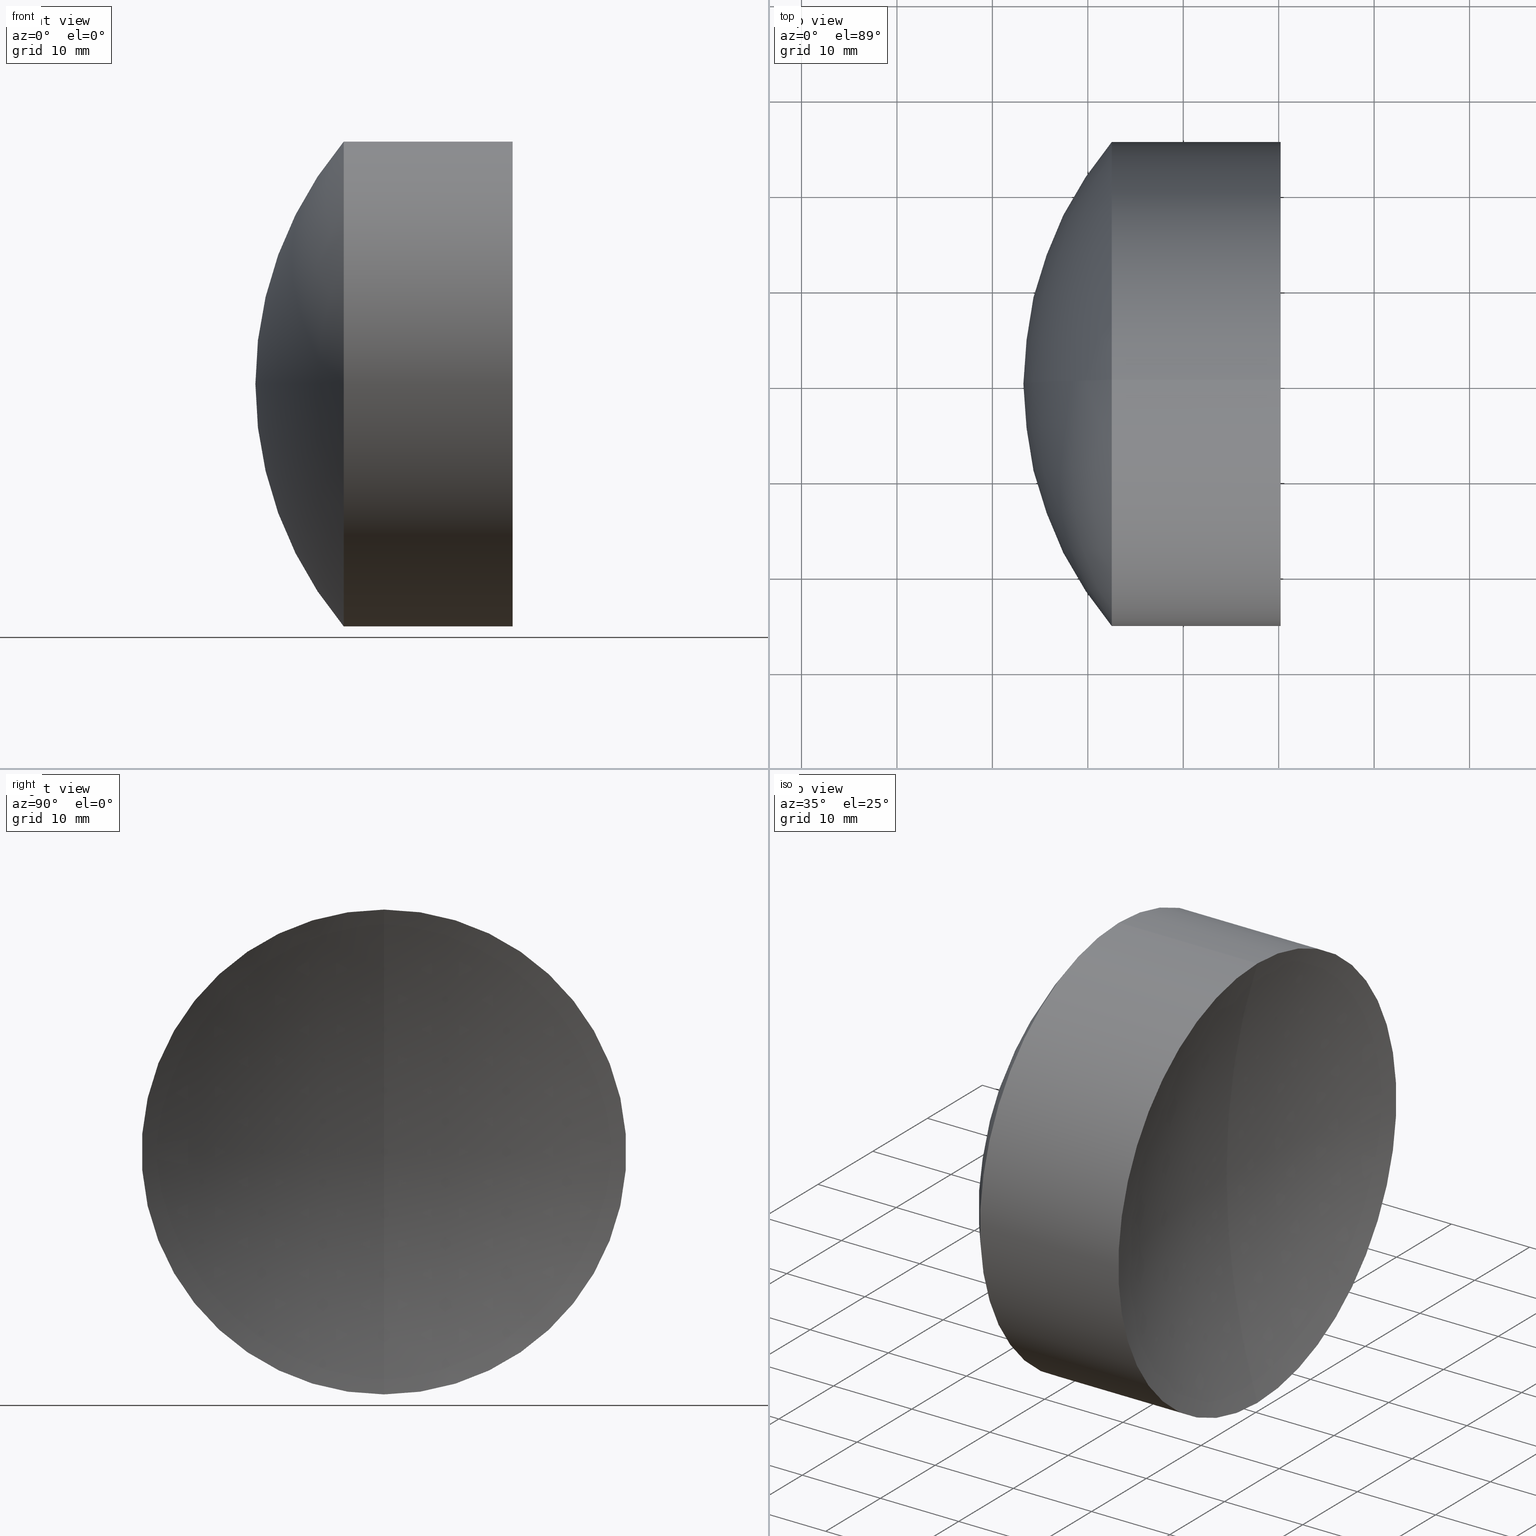
[diagram: canonical four-view strip — front | top / right | iso, engineering-drawing reading convention]
A machine part, canonical four-view strip (front | top / right | iso — engineering-drawing reading convention). The complete STEP part file that produces these views, byte-faithful:
ISO-10303-21;
HEADER;
FILE_DESCRIPTION (( 'STEP AP214' ),
    '1' );
FILE_NAME ('145179.STEP',
    '2019-06-13T01:35:48',
    ( 'user' ),
    ( '΢���й�' ),
    'SwSTEP 2.0',
    'SolidWorks 2016',
    '' );
FILE_SCHEMA (( 'AUTOMOTIVE_DESIGN' ));
ENDSEC;

DATA;
#1 = CARTESIAN_POINT ( 'NONE',  ( 199.8494437825909000, 0.0000000000000000000, 0.0000000000000000000 ) ) ;
#2 = DIRECTION ( 'NONE',  ( -0.0000000000000000000, 1.000000000000000000, 1.224646799147353200E-016 ) ) ;
#3 = DIRECTION ( 'NONE',  ( 0.0000000000000000000, 1.224646799147353200E-016, -1.000000000000000000 ) ) ;
#4 = ORIENTED_EDGE ( 'NONE', *, *, #196, .T. ) ;
#5 = DIRECTION ( 'NONE',  ( 0.0000000000000000000, 0.0000000000000000000, 1.000000000000000000 ) ) ;
#6 = ORIENTED_EDGE ( 'NONE', *, *, #211, .F. ) ;
#7 = AXIS2_PLACEMENT_3D ( 'NONE', #138, #291, #108 ) ;
#8 = DIRECTION ( 'NONE',  ( 0.0000000000000000000, 0.0000000000000000000, -1.000000000000000000 ) ) ;
#9 = FACE_OUTER_BOUND ( 'NONE', #109, .T. ) ;
#10 = DIRECTION ( 'NONE',  ( 0.0000000000000000000, 0.0000000000000000000, -1.000000000000000000 ) ) ;
#11 = FACE_OUTER_BOUND ( 'NONE', #34, .T. ) ;
#12 = CARTESIAN_POINT ( 'NONE',  ( 0.0000000000000000000, 0.0000000000000000000, 0.0000000000000000000 ) ) ;
#13 = MECHANICAL_DESIGN_GEOMETRIC_PRESENTATION_REPRESENTATION (  '', ( #324 ), #39 ) ;
#14 = ORIENTED_EDGE ( 'NONE', *, *, #249, .F. ) ;
#15 = SURFACE_STYLE_USAGE ( .BOTH. , #130 ) ;
#16 = ORIENTED_EDGE ( 'NONE', *, *, #50, .T. ) ;
#17 = ORIENTED_EDGE ( 'NONE', *, *, #71, .F. ) ;
#18 = DIRECTION ( 'NONE',  ( 0.0000000000000000000, 0.0000000000000000000, 1.000000000000000000 ) ) ;
#19 = MANIFOLD_SOLID_BREP ( '��ת1', #309 ) ;
#20 = SPHERICAL_SURFACE ( 'NONE', #244, 49.88999999999998600 ) ;
#21 = SURFACE_STYLE_USAGE ( .BOTH. , #51 ) ;
#22 = SPHERICAL_SURFACE ( 'NONE', #259, 49.88999999999998600 ) ;
#23 = EDGE_CURVE ( 'NONE', #100, #292, #134, .T. ) ;
#24 = ORIENTED_EDGE ( 'NONE', *, *, #196, .F. ) ;
#25 = EDGE_CURVE ( 'NONE', #283, #174, #331, .T. ) ;
#26 = CARTESIAN_POINT ( 'NONE',  ( 61.35944378259088700, 0.0000000000000000000, 1.934033328962417500E-014 ) ) ;
#27 = PRODUCT ( '145179', '145179', '', ( #69 ) ) ;
#28 = DIRECTION ( 'NONE',  ( 0.0000000000000000000, 0.0000000000000000000, 1.000000000000000000 ) ) ;
#29 = CARTESIAN_POINT ( 'NONE',  ( 104.2995427577912200, 3.110602869834277700E-015, -25.40000000000000600 ) ) ;
#30 = ORIENTED_EDGE ( 'NONE', *, *, #187, .T. ) ;
#31 = DIRECTION ( 'NONE',  ( -1.000000000000000000, -0.0000000000000000000, -0.0000000000000000000 ) ) ;
#32 = COLOUR_RGB ( '',1.000000000000000000, 1.000000000000000000, 1.000000000000000000 ) ;
#33 =( NAMED_UNIT ( * ) SI_UNIT ( $, .STERADIAN. ) SOLID_ANGLE_UNIT ( ) );
#34 = EDGE_LOOP ( 'NONE', ( #301, #207, #186, #14 ) ) ;
#35 = CARTESIAN_POINT ( 'NONE',  ( 61.35944378259088700, 0.0000000000000000000, 1.934033328962417500E-014 ) ) ;
#36 = DIRECTION ( 'NONE',  ( 0.0000000000000000000, 1.000000000000000000, 0.0000000000000000000 ) ) ;
#37 = ADVANCED_FACE ( 'NONE', ( #208 ), #123, .T. ) ;
#38 = ORIENTED_EDGE ( 'NONE', *, *, #247, .T. ) ;
#39 =( GEOMETRIC_REPRESENTATION_CONTEXT ( 3 ) GLOBAL_UNCERTAINTY_ASSIGNED_CONTEXT ( ( #276 ) ) GLOBAL_UNIT_ASSIGNED_CONTEXT ( ( #332, #237, #212 ) ) REPRESENTATION_CONTEXT ( 'NONE', 'WORKASPACE' ) );
#40 = CARTESIAN_POINT ( 'NONE',  ( 93.24944378259087300, 0.0000000000000000000, -1.964037554729124800E-016 ) ) ;
#41 = ORIENTED_EDGE ( 'NONE', *, *, #159, .T. ) ;
#42 = CARTESIAN_POINT ( 'NONE',  ( 104.2995427577912200, 0.0000000000000000000, -25.39999999999995600 ) ) ;
#43 = CARTESIAN_POINT ( 'NONE',  ( 104.2995427577912200, 0.0000000000000000000, 0.0000000000000000000 ) ) ;
#44 = DIRECTION ( 'NONE',  ( -1.000000000000000000, -0.0000000000000000000, -0.0000000000000000000 ) ) ;
#45 = VERTEX_POINT ( 'NONE', #339 ) ;
#46 = AXIS2_PLACEMENT_3D ( 'NONE', #340, #295, #111 ) ;
#47 = ORIENTED_EDGE ( 'NONE', *, *, #247, .F. ) ;
#48 = DIRECTION ( 'NONE',  ( 0.0000000000000000000, 0.0000000000000000000, 1.000000000000000000 ) ) ;
#49 = ORIENTED_EDGE ( 'NONE', *, *, #213, .F. ) ;
#50 = EDGE_CURVE ( 'NONE', #204, #45, #258, .T. ) ;
#51 = SURFACE_SIDE_STYLE ('',( #319 ) ) ;
#52 = FACE_OUTER_BOUND ( 'NONE', #99, .T. ) ;
#53 = LINE ( 'NONE', #246, #265 ) ;
#54 = DIRECTION ( 'NONE',  ( -1.000000000000000000, -0.0000000000000000000, -0.0000000000000000000 ) ) ;
#55 = FACE_OUTER_BOUND ( 'NONE', #80, .T. ) ;
#56 = DIRECTION ( 'NONE',  ( 0.0000000000000000000, 0.0000000000000000000, 1.000000000000000000 ) ) ;
#57 = ORIENTED_EDGE ( 'NONE', *, *, #187, .F. ) ;
#58 = SURFACE_SIDE_STYLE ('',( #261 ) ) ;
#59 = DIRECTION ( 'NONE',  ( 0.0000000000000000000, -1.224646799147353200E-016, 1.000000000000000000 ) ) ;
#60 = ORIENTED_EDGE ( 'NONE', *, *, #211, .T. ) ;
#61 = AXIS2_PLACEMENT_3D ( 'NONE', #122, #96, #89 ) ;
#62 = ADVANCED_FACE ( 'NONE', ( #115 ), #323, .F. ) ;
#63 = CARTESIAN_POINT ( 'NONE',  ( 132.7294437825908900, 0.0000000000000000000, -2.613856536989788900E-015 ) ) ;
#64 = CARTESIAN_POINT ( 'NONE',  ( 199.8494437825909000, 0.0000000000000000000, 0.0000000000000000000 ) ) ;
#65 = CARTESIAN_POINT ( 'NONE',  ( 199.8494437825909000, 0.0000000000000000000, 0.0000000000000000000 ) ) ;
#66 = CARTESIAN_POINT ( 'NONE',  ( 116.2494437825908600, 0.0000000000000000000, -5.119023620435939000E-015 ) ) ;
#67 = ORIENTED_EDGE ( 'NONE', *, *, #281, .T. ) ;
#68 = CIRCLE ( 'NONE', #131, 25.39999999999995600 ) ;
#69 = PRODUCT_CONTEXT ( 'NONE', #157, 'mechanical' ) ;
#70 = CARTESIAN_POINT ( 'NONE',  ( 102.5051092158878300, 0.0000000000000000000, 25.40000000000000600 ) ) ;
#71 = EDGE_CURVE ( 'NONE', #82, #342, #53, .T. ) ;
#72 = FILL_AREA_STYLE ('',( #125 ) ) ;
#73 = CARTESIAN_POINT ( 'NONE',  ( -0.8160621761658039000, 0.0000000000000000000, 0.0000000000000000000 ) ) ;
#74 = ORIENTED_EDGE ( 'NONE', *, *, #25, .F. ) ;
#75 = CIRCLE ( 'NONE', #165, 25.39999999999995600 ) ;
#76 = AXIS2_PLACEMENT_3D ( 'NONE', #202, #325, #273 ) ;
#77 = EDGE_CURVE ( 'NONE', #82, #100, #191, .T. ) ;
#78 = CARTESIAN_POINT ( 'NONE',  ( 111.2494437825908900, 0.0000000000000000000, 2.239521473009724700E-014 ) ) ;
#79 = EDGE_CURVE ( 'NONE', #45, #243, #198, .T. ) ;
#80 = EDGE_LOOP ( 'NONE', ( #236, #60, #49 ) ) ;
#81 = DIRECTION ( 'NONE',  ( 0.0000000000000000000, 0.0000000000000000000, -1.000000000000000000 ) ) ;
#82 = VERTEX_POINT ( 'NONE', #29 ) ;
#83 = CARTESIAN_POINT ( 'NONE',  ( 120.2014682904290900, 0.0000000000000000000, 0.0000000000000000000 ) ) ;
#84 = ADVANCED_BREP_SHAPE_REPRESENTATION ( '145179', ( #19, #269, #91 ), #242 ) ;
#85 = SURFACE_STYLE_USAGE ( .BOTH. , #58 ) ;
#86 = CIRCLE ( 'NONE', #239, 25.40000000000000600 ) ;
#87 = SHAPE_DEFINITION_REPRESENTATION ( #235, #84 ) ;
#88 = ADVANCED_FACE ( 'NONE', ( #343 ), #143, .T. ) ;
#89 = DIRECTION ( 'NONE',  ( 0.0000000000000000000, 0.0000000000000000000, -1.000000000000000000 ) ) ;
#90 = ORIENTED_EDGE ( 'NONE', *, *, #126, .F. ) ;
#91 = AXIS2_PLACEMENT_3D ( 'NONE', #12, #260, #156 ) ;
#92 = ORIENTED_EDGE ( 'NONE', *, *, #23, .T. ) ;
#93 = CARTESIAN_POINT ( 'NONE',  ( -0.5519199926577972300, 0.0000000000000000000, 0.0000000000000000000 ) ) ;
#94 = ORIENTED_EDGE ( 'NONE', *, *, #146, .F. ) ;
#95 = CIRCLE ( 'NONE', #284, 39.48000000000001800 ) ;
#96 = DIRECTION ( 'NONE',  ( 0.0000000000000000000, -1.000000000000000000, 0.0000000000000000000 ) ) ;
#97 = SPHERICAL_SURFACE ( 'NONE', #226, 83.60000000000003700 ) ;
#98 = AXIS2_PLACEMENT_3D ( 'NONE', #144, #225, #48 ) ;
#99 = EDGE_LOOP ( 'NONE', ( #24, #114, #253 ) ) ;
#100 = VERTEX_POINT ( 'NONE', #317 ) ;
#101 = DIRECTION ( 'NONE',  ( -1.000000000000000000, -0.0000000000000000000, -0.0000000000000000000 ) ) ;
#102 = DIRECTION ( 'NONE',  ( 0.0000000000000000000, 0.0000000000000000000, -1.000000000000000000 ) ) ;
#103 = ORIENTED_EDGE ( 'NONE', *, *, #146, .T. ) ;
#104 = APPLICATION_PROTOCOL_DEFINITION ( 'draft international standard', 'automotive_design', 1998, #124 ) ;
#105 = ORIENTED_EDGE ( 'NONE', *, *, #77, .T. ) ;
#106 = DIRECTION ( 'NONE',  ( 0.0000000000000000000, 0.0000000000000000000, 1.000000000000000000 ) ) ;
#107 = PRODUCT_DEFINITION ( 'δ֪', '', #127, #218 ) ;
#108 = DIRECTION ( 'NONE',  ( 0.0000000000000000000, 0.0000000000000000000, 1.000000000000000000 ) ) ;
#109 = EDGE_LOOP ( 'NONE', ( #251, #220, #41 ) ) ;
#110 = DIRECTION ( 'NONE',  ( 0.0000000000000000000, -1.000000000000000000, -1.224646799147353200E-016 ) ) ;
#111 = DIRECTION ( 'NONE',  ( 0.0000000000000000000, 0.0000000000000000000, 1.000000000000000000 ) ) ;
#112 = ADVANCED_FACE ( 'NONE', ( #217 ), #277, .T. ) ;
#113 = AXIS2_PLACEMENT_3D ( 'NONE', #197, #36, #206 ) ;
#114 = ORIENTED_EDGE ( 'NONE', *, *, #169, .F. ) ;
#115 = FACE_OUTER_BOUND ( 'NONE', #228, .T. ) ;
#116 = VERTEX_POINT ( 'NONE', #78 ) ;
#117 = CARTESIAN_POINT ( 'NONE',  ( 132.7294437825908900, 0.0000000000000000000, -2.613856536989788900E-015 ) ) ;
#118 = AXIS2_PLACEMENT_3D ( 'NONE', #63, #252, #10 ) ;
#119 = DIRECTION ( 'NONE',  ( 0.0000000000000000000, 1.000000000000000000, -0.0000000000000000000 ) ) ;
#120 = CIRCLE ( 'NONE', #98, 25.40000000000000600 ) ;
#121 = AXIS2_PLACEMENT_3D ( 'NONE', #140, #318, #81 ) ;
#122 = CARTESIAN_POINT ( 'NONE',  ( 61.35944378259088700, 0.0000000000000000000, 1.934033328962417500E-014 ) ) ;
#123 = CYLINDRICAL_SURFACE ( 'NONE', #46, 25.40000000000000600 ) ;
#124 = APPLICATION_CONTEXT ( 'automotive_design' ) ;
#125 = FILL_AREA_STYLE_COLOUR ( '', #32 ) ;
#126 = EDGE_CURVE ( 'NONE', #174, #243, #286, .T. ) ;
#127 = PRODUCT_DEFINITION_FORMATION_WITH_SPECIFIED_SOURCE ( '�κ�', '', #27, .NOT_KNOWN. ) ;
#128 = PRESENTATION_STYLE_ASSIGNMENT (( #85 ) ) ;
#129 = PRESENTATION_STYLE_ASSIGNMENT (( #15 ) ) ;
#130 = SURFACE_SIDE_STYLE ('',( #201 ) ) ;
#131 = AXIS2_PLACEMENT_3D ( 'NONE', #205, #44, #180 ) ;
#132 = DIRECTION ( 'NONE',  ( 0.0000000000000000000, 1.000000000000000000, 0.0000000000000000000 ) ) ;
#133 = DIRECTION ( 'NONE',  ( -0.0000000000000000000, -1.000000000000000000, -0.0000000000000000000 ) ) ;
#134 = LINE ( 'NONE', #221, #271 ) ;
#135 = STYLED_ITEM ( 'NONE', ( #256 ), #269 ) ;
#136 = AXIS2_PLACEMENT_3D ( 'NONE', #275, #119, #254 ) ;
#137 = DIRECTION ( 'NONE',  ( -1.000000000000000000, -0.0000000000000000000, -0.0000000000000000000 ) ) ;
#138 = CARTESIAN_POINT ( 'NONE',  ( 104.2995427577912200, 0.0000000000000000000, 0.0000000000000000000 ) ) ;
#139 = AXIS2_PLACEMENT_3D ( 'NONE', #293, #110, #268 ) ;
#140 = CARTESIAN_POINT ( 'NONE',  ( 199.8494437825909000, 0.0000000000000000000, 0.0000000000000000000 ) ) ;
#141 = AXIS2_PLACEMENT_3D ( 'NONE', #65, #255, #328 ) ;
#142 =( LENGTH_UNIT ( ) NAMED_UNIT ( * ) SI_UNIT ( .MILLI., .METRE. ) );
#143 = SPHERICAL_SURFACE ( 'NONE', #330, 39.48000000000001800 ) ;
#144 = CARTESIAN_POINT ( 'NONE',  ( 102.5051092158878300, 0.0000000000000000000, 0.0000000000000000000 ) ) ;
#145 = CARTESIAN_POINT ( 'NONE',  ( 120.2014682904290900, 0.0000000000000000000, -25.39999999999995600 ) ) ;
#146 = EDGE_CURVE ( 'NONE', #116, #82, #153, .T. ) ;
#147 = SPHERICAL_SURFACE ( 'NONE', #76, 49.88999999999998600 ) ;
#148 = PRODUCT_RELATED_PRODUCT_CATEGORY ( 'part', '', ( #27 ) ) ;
#149 = CARTESIAN_POINT ( 'NONE',  ( 111.2494437825908900, 0.0000000000000000000, 1.628545184915110600E-014 ) ) ;
#150 = ORIENTED_EDGE ( 'NONE', *, *, #213, .T. ) ;
#151 = DIRECTION ( 'NONE',  ( -1.000000000000000000, -0.0000000000000000000, -0.0000000000000000000 ) ) ;
#152 = UNCERTAINTY_MEASURE_WITH_UNIT (LENGTH_MEASURE( 1.000000000000000100E-005 ), #190, 'distance_accuracy_value', 'NONE');
#153 = CIRCLE ( 'NONE', #344, 49.88999999999998600 ) ;
#154 = CYLINDRICAL_SURFACE ( 'NONE', #289, 25.39999999999995600 ) ;
#155 = PRESENTATION_LAYER_ASSIGNMENT (  '', '', ( #135 ) ) ;
#156 = DIRECTION ( 'NONE',  ( 1.000000000000000000, 0.0000000000000000000, 0.0000000000000000000 ) ) ;
#157 = APPLICATION_CONTEXT ( 'automotive_design' ) ;
#158 = ORIENTED_EDGE ( 'NONE', *, *, #249, .T. ) ;
#159 = EDGE_CURVE ( 'NONE', #243, #45, #75, .T. ) ;
#160 = ORIENTED_EDGE ( 'NONE', *, *, #177, .F. ) ;
#161 = DIRECTION ( 'NONE',  ( 0.0000000000000000000, 0.0000000000000000000, 1.000000000000000000 ) ) ;
#162 = SPHERICAL_SURFACE ( 'NONE', #113, 39.48000000000001800 ) ;
#163 =( NAMED_UNIT ( * ) SI_UNIT ( $, .STERADIAN. ) SOLID_ANGLE_UNIT ( ) );
#164 = CIRCLE ( 'NONE', #136, 49.88999999999998600 ) ;
#165 = AXIS2_PLACEMENT_3D ( 'NONE', #347, #171, #183 ) ;
#166 = EDGE_LOOP ( 'NONE', ( #94, #38, #189 ) ) ;
#167 = DIRECTION ( 'NONE',  ( 0.0000000000000000000, 1.000000000000000000, 0.0000000000000000000 ) ) ;
#168 = ORIENTED_EDGE ( 'NONE', *, *, #79, .T. ) ;
#169 = EDGE_CURVE ( 'NONE', #174, #283, #68, .T. ) ;
#170 = COLOUR_RGB ( '',1.000000000000000000, 1.000000000000000000, 1.000000000000000000 ) ;
#171 = DIRECTION ( 'NONE',  ( -1.000000000000000000, -0.0000000000000000000, -0.0000000000000000000 ) ) ;
#172 = MECHANICAL_DESIGN_GEOMETRIC_PRESENTATION_REPRESENTATION (  '', ( #135 ), #192 ) ;
#173 = ADVANCED_FACE ( 'NONE', ( #9 ), #20, .F. ) ;
#174 = VERTEX_POINT ( 'NONE', #145 ) ;
#175 = FILL_AREA_STYLE ('',( #305 ) ) ;
#176 = EDGE_LOOP ( 'NONE', ( #6, #67, #150 ) ) ;
#177 = EDGE_CURVE ( 'NONE', #174, #238, #296, .T. ) ;
#178 = DIRECTION ( 'NONE',  ( -1.000000000000000000, -0.0000000000000000000, -0.0000000000000000000 ) ) ;
#179 = CIRCLE ( 'NONE', #181, 83.60000000000003700 ) ;
#180 = DIRECTION ( 'NONE',  ( 0.0000000000000000000, 0.0000000000000000000, 1.000000000000000000 ) ) ;
#181 = AXIS2_PLACEMENT_3D ( 'NONE', #64, #327, #3 ) ;
#182 = EDGE_LOOP ( 'NONE', ( #30, #307, #329, #316 ) ) ;
#183 = DIRECTION ( 'NONE',  ( 0.0000000000000000000, 0.0000000000000000000, 1.000000000000000000 ) ) ;
#184 = EDGE_LOOP ( 'NONE', ( #314, #16, #168 ) ) ;
#185 =( NAMED_UNIT ( * ) PLANE_ANGLE_UNIT ( ) SI_UNIT ( $, .RADIAN. ) );
#186 = ORIENTED_EDGE ( 'NONE', *, *, #79, .F. ) ;
#187 = EDGE_CURVE ( 'NONE', #100, #82, #86, .T. ) ;
#188 = CARTESIAN_POINT ( 'NONE',  ( 102.5051092158878300, 0.0000000000000000000, 0.0000000000000000000 ) ) ;
#189 = ORIENTED_EDGE ( 'NONE', *, *, #77, .F. ) ;
#190 =( LENGTH_UNIT ( ) NAMED_UNIT ( * ) SI_UNIT ( .MILLI., .METRE. ) );
#191 = CIRCLE ( 'NONE', #7, 25.40000000000000600 ) ;
#192 =( GEOMETRIC_REPRESENTATION_CONTEXT ( 3 ) GLOBAL_UNCERTAINTY_ASSIGNED_CONTEXT ( ( #152 ) ) GLOBAL_UNIT_ASSIGNED_CONTEXT ( ( #190, #335, #163 ) ) REPRESENTATION_CONTEXT ( 'NONE', 'WORKASPACE' ) );
#193 = CARTESIAN_POINT ( 'NONE',  ( 132.7294437825908900, 0.0000000000000000000, -2.613856536989788900E-015 ) ) ;
#194 = EDGE_LOOP ( 'NONE', ( #17, #105, #92, #303 ) ) ;
#195 = EDGE_CURVE ( 'NONE', #204, #243, #164, .T. ) ;
#196 = EDGE_CURVE ( 'NONE', #283, #238, #179, .T. ) ;
#197 = CARTESIAN_POINT ( 'NONE',  ( 132.7294437825908900, 0.0000000000000000000, -2.613856536989788900E-015 ) ) ;
#198 = CIRCLE ( 'NONE', #203, 25.39999999999995600 ) ;
#199 = ADVANCED_FACE ( 'NONE', ( #232 ), #304, .T. ) ;
#200 = DIRECTION ( 'NONE',  ( -0.0000000000000000000, -1.000000000000000000, -0.0000000000000000000 ) ) ;
#201 = SURFACE_STYLE_FILL_AREA ( #72 ) ;
#202 = CARTESIAN_POINT ( 'NONE',  ( 61.35944378259088700, 0.0000000000000000000, 1.934033328962417500E-014 ) ) ;
#203 = AXIS2_PLACEMENT_3D ( 'NONE', #245, #54, #28 ) ;
#204 = VERTEX_POINT ( 'NONE', #149 ) ;
#205 = CARTESIAN_POINT ( 'NONE',  ( 120.2014682904290900, 0.0000000000000000000, 0.0000000000000000000 ) ) ;
#206 = DIRECTION ( 'NONE',  ( 0.0000000000000000000, 0.0000000000000000000, 1.000000000000000000 ) ) ;
#207 = ORIENTED_EDGE ( 'NONE', *, *, #126, .T. ) ;
#208 = FACE_OUTER_BOUND ( 'NONE', #182, .T. ) ;
#209 = AXIS2_PLACEMENT_3D ( 'NONE', #188, #333, #161 ) ;
#210 =( NAMED_UNIT ( * ) SI_UNIT ( $, .STERADIAN. ) SOLID_ANGLE_UNIT ( ) );
#211 = EDGE_CURVE ( 'NONE', #342, #216, #95, .T. ) ;
#212 =( NAMED_UNIT ( * ) SI_UNIT ( $, .STERADIAN. ) SOLID_ANGLE_UNIT ( ) );
#213 = EDGE_CURVE ( 'NONE', #292, #216, #241, .T. ) ;
#214 = UNCERTAINTY_MEASURE_WITH_UNIT (LENGTH_MEASURE( 1.000000000000000100E-005 ), #142, 'distance_accuracy_value', 'NONE');
#215 = AXIS2_PLACEMENT_3D ( 'NONE', #93, #151, #229 ) ;
#216 = VERTEX_POINT ( 'NONE', #40 ) ;
#217 = FACE_OUTER_BOUND ( 'NONE', #166, .T. ) ;
#218 = PRODUCT_DEFINITION_CONTEXT ( 'detailed design', #124, 'design' ) ;
#219 = FACE_OUTER_BOUND ( 'NONE', #184, .T. ) ;
#220 = ORIENTED_EDGE ( 'NONE', *, *, #195, .T. ) ;
#221 = CARTESIAN_POINT ( 'NONE',  ( -0.8160621761658039000, 0.0000000000000000000, 25.40000000000000600 ) ) ;
#222 = VECTOR ( 'NONE', #137, 1000.000000000000000 ) ;
#223 = DIRECTION ( 'NONE',  ( -0.0000000000000000000, 1.000000000000000000, 1.224646799147353200E-016 ) ) ;
#224 = ADVANCED_FACE ( 'NONE', ( #219 ), #147, .F. ) ;
#225 = DIRECTION ( 'NONE',  ( -1.000000000000000000, -0.0000000000000000000, -0.0000000000000000000 ) ) ;
#226 = AXIS2_PLACEMENT_3D ( 'NONE', #1, #133, #102 ) ;
#227 = CARTESIAN_POINT ( 'NONE',  ( -0.5519199926577972300, 0.0000000000000000000, 25.39999999999995600 ) ) ;
#228 = EDGE_LOOP ( 'NONE', ( #74, #4, #160 ) ) ;
#229 = DIRECTION ( 'NONE',  ( 0.0000000000000000000, 0.0000000000000000000, 1.000000000000000000 ) ) ;
#230 = EDGE_LOOP ( 'NONE', ( #47, #103, #57 ) ) ;
#231 = VECTOR ( 'NONE', #257, 1000.000000000000000 ) ;
#232 = FACE_OUTER_BOUND ( 'NONE', #312, .T. ) ;
#233 = STYLED_ITEM ( 'NONE', ( #128 ), #19 ) ;
#234 = FACE_OUTER_BOUND ( 'NONE', #230, .T. ) ;
#235 = PRODUCT_DEFINITION_SHAPE ( 'NONE', 'NONE',  #107 ) ;
#236 = ORIENTED_EDGE ( 'NONE', *, *, #264, .T. ) ;
#237 =( NAMED_UNIT ( * ) PLANE_ANGLE_UNIT ( ) SI_UNIT ( $, .RADIAN. ) );
#238 = VERTEX_POINT ( 'NONE', #66 ) ;
#239 = AXIS2_PLACEMENT_3D ( 'NONE', #43, #178, #5 ) ;
#240 = DIRECTION ( 'NONE',  ( -1.000000000000000000, -0.0000000000000000000, -0.0000000000000000000 ) ) ;
#241 = CIRCLE ( 'NONE', #118, 39.48000000000001800 ) ;
#242 =( GEOMETRIC_REPRESENTATION_CONTEXT ( 3 ) GLOBAL_UNCERTAINTY_ASSIGNED_CONTEXT ( ( #336 ) ) GLOBAL_UNIT_ASSIGNED_CONTEXT ( ( #279, #185, #210 ) ) REPRESENTATION_CONTEXT ( 'NONE', 'WORKASPACE' ) );
#243 = VERTEX_POINT ( 'NONE', #42 ) ;
#244 = AXIS2_PLACEMENT_3D ( 'NONE', #26, #200, #8 ) ;
#245 = CARTESIAN_POINT ( 'NONE',  ( 104.2995427577912200, 0.0000000000000000000, 0.0000000000000000000 ) ) ;
#246 = CARTESIAN_POINT ( 'NONE',  ( -0.8160621761658039000, 3.110602869834277700E-015, -25.40000000000000600 ) ) ;
#247 = EDGE_CURVE ( 'NONE', #116, #100, #306, .T. ) ;
#248 = DIRECTION ( 'NONE',  ( -1.000000000000000000, -0.0000000000000000000, -0.0000000000000000000 ) ) ;
#249 = EDGE_CURVE ( 'NONE', #283, #45, #266, .T. ) ;
#250 = ADVANCED_FACE ( 'NONE', ( #55 ), #162, .T. ) ;
#251 = ORIENTED_EDGE ( 'NONE', *, *, #50, .F. ) ;
#252 = DIRECTION ( 'NONE',  ( 0.0000000000000000000, -1.000000000000000000, 0.0000000000000000000 ) ) ;
#253 = ORIENTED_EDGE ( 'NONE', *, *, #177, .T. ) ;
#254 = DIRECTION ( 'NONE',  ( 0.0000000000000000000, 0.0000000000000000000, 1.000000000000000000 ) ) ;
#255 = DIRECTION ( 'NONE',  ( 0.0000000000000000000, 1.000000000000000000, -0.0000000000000000000 ) ) ;
#256 = PRESENTATION_STYLE_ASSIGNMENT (( #21 ) ) ;
#257 = DIRECTION ( 'NONE',  ( -1.000000000000000000, -0.0000000000000000000, -0.0000000000000000000 ) ) ;
#258 = CIRCLE ( 'NONE', #139, 49.88999999999998600 ) ;
#259 = AXIS2_PLACEMENT_3D ( 'NONE', #285, #132, #282 ) ;
#260 = DIRECTION ( 'NONE',  ( 0.0000000000000000000, 0.0000000000000000000, 1.000000000000000000 ) ) ;
#261 = SURFACE_STYLE_FILL_AREA ( #302 ) ;
#262 = CARTESIAN_POINT ( 'NONE',  ( -0.5519199926577972300, 0.0000000000000000000, 0.0000000000000000000 ) ) ;
#263 = DIRECTION ( 'NONE',  ( 0.0000000000000000000, 0.0000000000000000000, 1.000000000000000000 ) ) ;
#264 = EDGE_CURVE ( 'NONE', #292, #342, #120, .T. ) ;
#265 = VECTOR ( 'NONE', #31, 1000.000000000000000 ) ;
#266 = LINE ( 'NONE', #227, #231 ) ;
#267 = CARTESIAN_POINT ( 'NONE',  ( -0.5519199926577972300, 3.110602869834272100E-015, -25.39999999999995600 ) ) ;
#268 = DIRECTION ( 'NONE',  ( 0.0000000000000000000, 1.224646799147353200E-016, -1.000000000000000000 ) ) ;
#269 = MANIFOLD_SOLID_BREP ( '��ת2', #322 ) ;
#270 = ORIENTED_EDGE ( 'NONE', *, *, #169, .T. ) ;
#271 = VECTOR ( 'NONE', #320, 1000.000000000000000 ) ;
#272 = ADVANCED_FACE ( 'NONE', ( #52 ), #97, .F. ) ;
#273 = DIRECTION ( 'NONE',  ( 0.0000000000000000000, 0.0000000000000000000, -1.000000000000000000 ) ) ;
#274 = DIRECTION ( 'NONE',  ( 0.0000000000000000000, -1.224646799147353200E-016, 1.000000000000000000 ) ) ;
#275 = CARTESIAN_POINT ( 'NONE',  ( 61.35944378259088700, 0.0000000000000000000, 1.934033328962417500E-014 ) ) ;
#276 = UNCERTAINTY_MEASURE_WITH_UNIT (LENGTH_MEASURE( 1.000000000000000100E-005 ), #332, 'distance_accuracy_value', 'NONE');
#277 = SPHERICAL_SURFACE ( 'NONE', #313, 49.88999999999998600 ) ;
#278 = PRESENTATION_LAYER_ASSIGNMENT (  '', '', ( #233 ) ) ;
#279 =( LENGTH_UNIT ( ) NAMED_UNIT ( * ) SI_UNIT ( .MILLI., .METRE. ) );
#280 = APPLICATION_PROTOCOL_DEFINITION ( 'draft international standard', 'automotive_design', 1998, #157 ) ;
#281 = EDGE_CURVE ( 'NONE', #342, #292, #298, .T. ) ;
#282 = DIRECTION ( 'NONE',  ( 0.0000000000000000000, 0.0000000000000000000, 1.000000000000000000 ) ) ;
#283 = VERTEX_POINT ( 'NONE', #310 ) ;
#284 = AXIS2_PLACEMENT_3D ( 'NONE', #117, #2, #274 ) ;
#285 = CARTESIAN_POINT ( 'NONE',  ( 61.35944378259088700, 0.0000000000000000000, 1.934033328962417500E-014 ) ) ;
#286 = LINE ( 'NONE', #267, #222 ) ;
#287 = CARTESIAN_POINT ( 'NONE',  ( 102.5051092158878300, 3.110602869834277700E-015, -25.40000000000000900 ) ) ;
#288 = FACE_OUTER_BOUND ( 'NONE', #194, .T. ) ;
#289 = AXIS2_PLACEMENT_3D ( 'NONE', #262, #101, #263 ) ;
#290 = DIRECTION ( 'NONE',  ( 0.0000000000000000000, 1.000000000000000000, 0.0000000000000000000 ) ) ;
#291 = DIRECTION ( 'NONE',  ( -1.000000000000000000, -0.0000000000000000000, -0.0000000000000000000 ) ) ;
#292 = VERTEX_POINT ( 'NONE', #70 ) ;
#293 = CARTESIAN_POINT ( 'NONE',  ( 61.35944378259088700, 0.0000000000000000000, 1.934033328962417500E-014 ) ) ;
#294 = ORIENTED_EDGE ( 'NONE', *, *, #159, .F. ) ;
#295 = DIRECTION ( 'NONE',  ( -1.000000000000000000, -0.0000000000000000000, -0.0000000000000000000 ) ) ;
#296 = CIRCLE ( 'NONE', #141, 83.60000000000003700 ) ;
#297 =( NAMED_UNIT ( * ) PLANE_ANGLE_UNIT ( ) SI_UNIT ( $, .RADIAN. ) );
#298 = CIRCLE ( 'NONE', #209, 25.40000000000000600 ) ;
#299 = MECHANICAL_DESIGN_GEOMETRIC_PRESENTATION_REPRESENTATION (  '', ( #233 ), #334 ) ;
#300 = ADVANCED_FACE ( 'NONE', ( #234 ), #22, .T. ) ;
#301 = ORIENTED_EDGE ( 'NONE', *, *, #25, .T. ) ;
#302 = FILL_AREA_STYLE ('',( #341 ) ) ;
#303 = ORIENTED_EDGE ( 'NONE', *, *, #281, .F. ) ;
#304 = CYLINDRICAL_SURFACE ( 'NONE', #215, 25.39999999999995600 ) ;
#305 = FILL_AREA_STYLE_COLOUR ( '', #170 ) ;
#306 = CIRCLE ( 'NONE', #61, 49.88999999999998600 ) ;
#307 = ORIENTED_EDGE ( 'NONE', *, *, #71, .T. ) ;
#308 = AXIS2_PLACEMENT_3D ( 'NONE', #73, #240, #18 ) ;
#309 = CLOSED_SHELL ( 'NONE', ( #300, #37, #250, #88, #346, #112 ) ) ;
#310 = CARTESIAN_POINT ( 'NONE',  ( 120.2014682904290900, -3.110602869834272500E-015, 25.39999999999995600 ) ) ;
#311 = AXIS2_PLACEMENT_3D ( 'NONE', #83, #248, #56 ) ;
#312 = EDGE_LOOP ( 'NONE', ( #90, #270, #158, #294 ) ) ;
#313 = AXIS2_PLACEMENT_3D ( 'NONE', #315, #290, #106 ) ;
#314 = ORIENTED_EDGE ( 'NONE', *, *, #195, .F. ) ;
#315 = CARTESIAN_POINT ( 'NONE',  ( 61.35944378259088700, 0.0000000000000000000, 1.934033328962417500E-014 ) ) ;
#316 = ORIENTED_EDGE ( 'NONE', *, *, #23, .F. ) ;
#317 = CARTESIAN_POINT ( 'NONE',  ( 104.2995427577912200, 0.0000000000000000000, 25.40000000000000600 ) ) ;
#318 = DIRECTION ( 'NONE',  ( -0.0000000000000000000, -1.000000000000000000, -0.0000000000000000000 ) ) ;
#319 = SURFACE_STYLE_FILL_AREA ( #175 ) ;
#320 = DIRECTION ( 'NONE',  ( -1.000000000000000000, -0.0000000000000000000, -0.0000000000000000000 ) ) ;
#321 = ADVANCED_FACE ( 'NONE', ( #11 ), #154, .T. ) ;
#322 = CLOSED_SHELL ( 'NONE', ( #321, #62, #224, #173, #272, #199 ) ) ;
#323 = SPHERICAL_SURFACE ( 'NONE', #121, 83.60000000000003700 ) ;
#324 = STYLED_ITEM ( 'NONE', ( #129 ), #84 ) ;
#325 = DIRECTION ( 'NONE',  ( -0.0000000000000000000, -1.000000000000000000, -0.0000000000000000000 ) ) ;
#326 = COLOUR_RGB ( '',1.000000000000000000, 1.000000000000000000, 1.000000000000000000 ) ;
#327 = DIRECTION ( 'NONE',  ( 0.0000000000000000000, -1.000000000000000000, -1.224646799147353200E-016 ) ) ;
#328 = DIRECTION ( 'NONE',  ( 0.0000000000000000000, 0.0000000000000000000, 1.000000000000000000 ) ) ;
#329 = ORIENTED_EDGE ( 'NONE', *, *, #264, .F. ) ;
#330 = AXIS2_PLACEMENT_3D ( 'NONE', #193, #167, #338 ) ;
#331 = CIRCLE ( 'NONE', #311, 25.39999999999995600 ) ;
#332 =( LENGTH_UNIT ( ) NAMED_UNIT ( * ) SI_UNIT ( .MILLI., .METRE. ) );
#333 = DIRECTION ( 'NONE',  ( -1.000000000000000000, -0.0000000000000000000, -0.0000000000000000000 ) ) ;
#334 =( GEOMETRIC_REPRESENTATION_CONTEXT ( 3 ) GLOBAL_UNCERTAINTY_ASSIGNED_CONTEXT ( ( #214 ) ) GLOBAL_UNIT_ASSIGNED_CONTEXT ( ( #142, #297, #33 ) ) REPRESENTATION_CONTEXT ( 'NONE', 'WORKASPACE' ) );
#335 =( NAMED_UNIT ( * ) PLANE_ANGLE_UNIT ( ) SI_UNIT ( $, .RADIAN. ) );
#336 = UNCERTAINTY_MEASURE_WITH_UNIT (LENGTH_MEASURE( 1.000000000000000100E-005 ), #279, 'distance_accuracy_value', 'NONE');
#337 = PRESENTATION_LAYER_ASSIGNMENT (  '', '', ( #324 ) ) ;
#338 = DIRECTION ( 'NONE',  ( 0.0000000000000000000, 0.0000000000000000000, 1.000000000000000000 ) ) ;
#339 = CARTESIAN_POINT ( 'NONE',  ( 104.2995427577912200, -3.110602869834271700E-015, 25.39999999999997700 ) ) ;
#340 = CARTESIAN_POINT ( 'NONE',  ( -0.8160621761658039000, 0.0000000000000000000, 0.0000000000000000000 ) ) ;
#341 = FILL_AREA_STYLE_COLOUR ( '', #326 ) ;
#342 = VERTEX_POINT ( 'NONE', #287 ) ;
#343 = FACE_OUTER_BOUND ( 'NONE', #176, .T. ) ;
#344 = AXIS2_PLACEMENT_3D ( 'NONE', #35, #223, #59 ) ;
#345 = CYLINDRICAL_SURFACE ( 'NONE', #308, 25.40000000000000600 ) ;
#346 = ADVANCED_FACE ( 'NONE', ( #288 ), #345, .T. ) ;
#347 = CARTESIAN_POINT ( 'NONE',  ( 104.2995427577912200, 0.0000000000000000000, 0.0000000000000000000 ) ) ;
ENDSEC;
END-ISO-10303-21;
